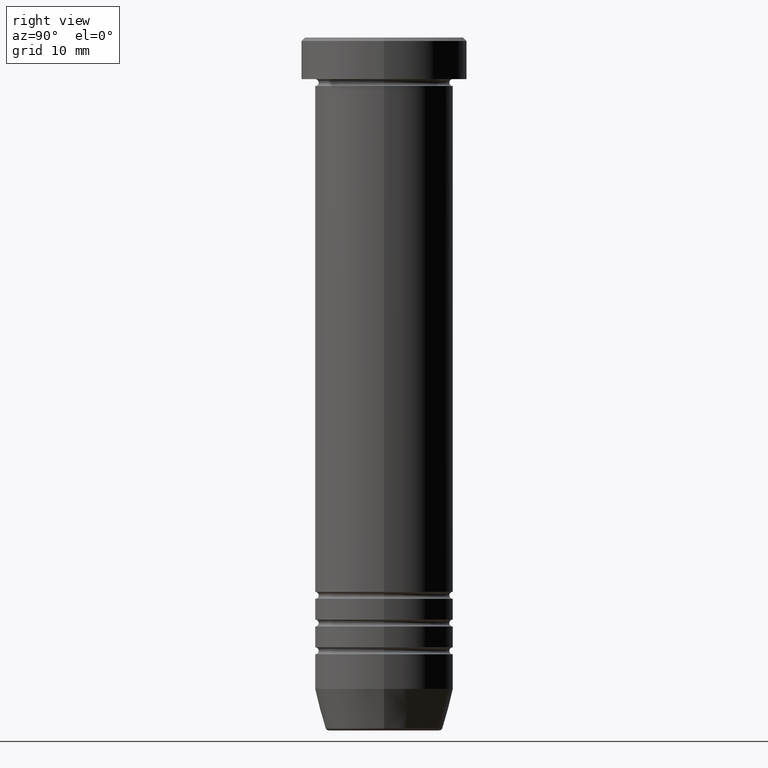
[diagram: clean part render]
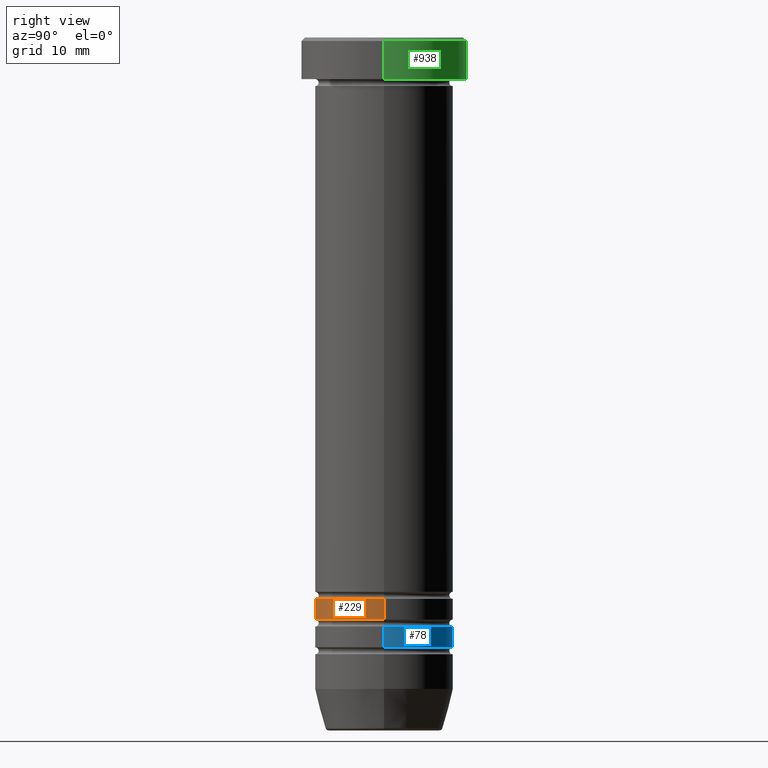
[diagram: same view with three faces highlighted in distinct colors, each labeled with its STEP entity id]
A machine part, right view with three faces highlighted in distinct colors.
Their STEP definitions:

[orange] entity #229 — the highlighted cylindrical surface (partial cylindrical patch) has radius 10 mm, axis along (-0, -0, 1).
#4 = EDGE_CURVE ( 'NONE', #180, #565, #630, .T. ) ;
#12 = VERTEX_POINT ( 'NONE', #38 ) ;
#38 = CARTESIAN_POINT ( 'NONE',  ( -10.00000000000000000, 1.224646799147353256E-15, -81.00000000000000000 ) ) ;
#48 = AXIS2_PLACEMENT_3D ( 'NONE', #1020, #848, #297 ) ;
#87 = ORIENTED_EDGE ( 'NONE', *, *, #288, .T. ) ;
#105 = DIRECTION ( 'NONE',  ( 1.000000000000000000, 0.000000000000000000, 0.000000000000000000 ) ) ;
#139 = DIRECTION ( 'NONE',  ( -0.000000000000000000, -0.000000000000000000, 1.000000000000000000 ) ) ;
#180 = VERTEX_POINT ( 'NONE', #584 ) ;
#199 = LINE ( 'NONE', #624, #552 ) ;
#215 = CARTESIAN_POINT ( 'NONE',  ( -9.999999999999998224, 1.224646799147353059E-15, -83.99999999999998579 ) ) ;
#216 = EDGE_LOOP ( 'NONE', ( #267, #87, #398, #902 ) ) ;
#229 = ADVANCED_FACE ( 'NONE', ( #828 ), #935, .T. ) ;
#243 = AXIS2_PLACEMENT_3D ( 'NONE', #293, #528, #1017 ) ;
#250 = EDGE_CURVE ( 'NONE', #693, #12, #199, .T. ) ;
#252 = EDGE_CURVE ( 'NONE', #12, #565, #959, .T. ) ;
#267 = ORIENTED_EDGE ( 'NONE', *, *, #250, .F. ) ;
#288 = EDGE_CURVE ( 'NONE', #693, #180, #669, .T. ) ;
#293 = CARTESIAN_POINT ( 'NONE',  ( 0.000000000000000000, 0.000000000000000000, -81.00000000000000000 ) ) ;
#297 = DIRECTION ( 'NONE',  ( 1.000000000000000000, 0.000000000000000000, 0.000000000000000000 ) ) ;
#398 = ORIENTED_EDGE ( 'NONE', *, *, #4, .T. ) ;
#445 = DIRECTION ( 'NONE',  ( -0.000000000000000000, -0.000000000000000000, 1.000000000000000000 ) ) ;
#486 = AXIS2_PLACEMENT_3D ( 'NONE', #1027, #629, #105 ) ;
#528 = DIRECTION ( 'NONE',  ( -0.000000000000000000, -0.000000000000000000, 1.000000000000000000 ) ) ;
#552 = VECTOR ( 'NONE', #445, 1000.000000000000000 ) ;
#565 = VERTEX_POINT ( 'NONE', #754 ) ;
#584 = CARTESIAN_POINT ( 'NONE',  ( 9.999999999999998224, 0.000000000000000000, -83.99999999999998579 ) ) ;
#624 = CARTESIAN_POINT ( 'NONE',  ( -9.999999999999998224, 1.224646799147353059E-15, 0.000000000000000000 ) ) ;
#629 = DIRECTION ( 'NONE',  ( -0.000000000000000000, -0.000000000000000000, 1.000000000000000000 ) ) ;
#630 = LINE ( 'NONE', #944, #911 ) ;
#669 = CIRCLE ( 'NONE', #486, 9.999999999999998224 ) ;
#693 = VERTEX_POINT ( 'NONE', #215 ) ;
#754 = CARTESIAN_POINT ( 'NONE',  ( 10.00000000000000000, 0.000000000000000000, -81.00000000000000000 ) ) ;
#828 = FACE_OUTER_BOUND ( 'NONE', #216, .T. ) ;
#848 = DIRECTION ( 'NONE',  ( -0.000000000000000000, -0.000000000000000000, 1.000000000000000000 ) ) ;
#902 = ORIENTED_EDGE ( 'NONE', *, *, #252, .F. ) ;
#911 = VECTOR ( 'NONE', #139, 1000.000000000000000 ) ;
#935 = CYLINDRICAL_SURFACE ( 'NONE', #48, 9.999999999999998224 ) ;
#944 = CARTESIAN_POINT ( 'NONE',  ( 9.999999999999998224, 0.000000000000000000, 0.000000000000000000 ) ) ;
#959 = CIRCLE ( 'NONE', #243, 10.00000000000000000 ) ;
#1017 = DIRECTION ( 'NONE',  ( 1.000000000000000000, 0.000000000000000000, 0.000000000000000000 ) ) ;
#1020 = CARTESIAN_POINT ( 'NONE',  ( 0.000000000000000000, 0.000000000000000000, 0.000000000000000000 ) ) ;
#1027 = CARTESIAN_POINT ( 'NONE',  ( 0.000000000000000000, 0.000000000000000000, -83.99999999999998579 ) ) ;

[blue] entity #78 — the highlighted cylindrical surface (partial cylindrical patch) has radius 10 mm, axis along (-0, -0, 1).
#39 = LINE ( 'NONE', #469, #281 ) ;
#57 = DIRECTION ( 'NONE',  ( 1.000000000000000000, 0.000000000000000000, 0.000000000000000000 ) ) ;
#60 = CARTESIAN_POINT ( 'NONE',  ( 10.00000000000000000, 0.000000000000000000, -84.99999999999998579 ) ) ;
#78 = ADVANCED_FACE ( 'NONE', ( #217 ), #715, .T. ) ;
#106 = ORIENTED_EDGE ( 'NONE', *, *, #131, .T. ) ;
#131 = EDGE_CURVE ( 'NONE', #986, #626, #305, .T. ) ;
#135 = CARTESIAN_POINT ( 'NONE',  ( -9.999999999999992895, 1.224646799147352665E-15, -88.00000000000000000 ) ) ;
#217 = FACE_OUTER_BOUND ( 'NONE', #714, .T. ) ;
#218 = DIRECTION ( 'NONE',  ( 1.000000000000000000, 0.000000000000000000, 0.000000000000000000 ) ) ;
#261 = CIRCLE ( 'NONE', #277, 9.999999999999992895 ) ;
#277 = AXIS2_PLACEMENT_3D ( 'NONE', #477, #470, #648 ) ;
#281 = VECTOR ( 'NONE', #310, 1000.000000000000000 ) ;
#305 = LINE ( 'NONE', #955, #355 ) ;
#309 = ORIENTED_EDGE ( 'NONE', *, *, #435, .T. ) ;
#310 = DIRECTION ( 'NONE',  ( -0.000000000000000000, -0.000000000000000000, 1.000000000000000000 ) ) ;
#355 = VECTOR ( 'NONE', #394, 1000.000000000000000 ) ;
#394 = DIRECTION ( 'NONE',  ( -0.000000000000000000, -0.000000000000000000, 1.000000000000000000 ) ) ;
#433 = CIRCLE ( 'NONE', #820, 10.00000000000000000 ) ;
#435 = EDGE_CURVE ( 'NONE', #749, #986, #261, .T. ) ;
#437 = VERTEX_POINT ( 'NONE', #60 ) ;
#469 = CARTESIAN_POINT ( 'NONE',  ( 9.999999999999996447, 0.000000000000000000, 0.000000000000000000 ) ) ;
#470 = DIRECTION ( 'NONE',  ( -0.000000000000000000, -0.000000000000000000, 1.000000000000000000 ) ) ;
#477 = CARTESIAN_POINT ( 'NONE',  ( 0.000000000000000000, 0.000000000000000000, -88.00000000000000000 ) ) ;
#535 = AXIS2_PLACEMENT_3D ( 'NONE', #557, #544, #57 ) ;
#544 = DIRECTION ( 'NONE',  ( -0.000000000000000000, -0.000000000000000000, 1.000000000000000000 ) ) ;
#557 = CARTESIAN_POINT ( 'NONE',  ( 0.000000000000000000, 0.000000000000000000, 0.000000000000000000 ) ) ;
#564 = CARTESIAN_POINT ( 'NONE',  ( 0.000000000000000000, 0.000000000000000000, -84.99999999999998579 ) ) ;
#612 = CARTESIAN_POINT ( 'NONE',  ( 9.999999999999992895, 0.000000000000000000, -88.00000000000000000 ) ) ;
#626 = VERTEX_POINT ( 'NONE', #763 ) ;
#648 = DIRECTION ( 'NONE',  ( 1.000000000000000000, 0.000000000000000000, 0.000000000000000000 ) ) ;
#714 = EDGE_LOOP ( 'NONE', ( #309, #106, #921, #799 ) ) ;
#715 = CYLINDRICAL_SURFACE ( 'NONE', #535, 9.999999999999996447 ) ;
#749 = VERTEX_POINT ( 'NONE', #612 ) ;
#763 = CARTESIAN_POINT ( 'NONE',  ( -10.00000000000000178, 1.224646799147353454E-15, -84.99999999999998579 ) ) ;
#799 = ORIENTED_EDGE ( 'NONE', *, *, #923, .F. ) ;
#820 = AXIS2_PLACEMENT_3D ( 'NONE', #564, #953, #218 ) ;
#921 = ORIENTED_EDGE ( 'NONE', *, *, #966, .F. ) ;
#923 = EDGE_CURVE ( 'NONE', #749, #437, #39, .T. ) ;
#953 = DIRECTION ( 'NONE',  ( -0.000000000000000000, -0.000000000000000000, 1.000000000000000000 ) ) ;
#955 = CARTESIAN_POINT ( 'NONE',  ( -9.999999999999996447, 1.224646799147352862E-15, 0.000000000000000000 ) ) ;
#966 = EDGE_CURVE ( 'NONE', #437, #626, #433, .T. ) ;
#986 = VERTEX_POINT ( 'NONE', #135 ) ;

[green] entity #938 — the highlighted cylindrical surface (partial cylindrical patch) has radius 12 mm, axis along (-0, -0, 1).
#33 = CIRCLE ( 'NONE', #337, 12.00000000000000000 ) ;
#72 = ORIENTED_EDGE ( 'NONE', *, *, #585, .T. ) ;
#86 = EDGE_CURVE ( 'NONE', #674, #839, #33, .T. ) ;
#116 = VECTOR ( 'NONE', #802, 1000.000000000000000 ) ;
#146 = DIRECTION ( 'NONE',  ( 1.000000000000000000, 0.000000000000000000, 0.000000000000000000 ) ) ;
#221 = EDGE_LOOP ( 'NONE', ( #851, #72, #641, #852 ) ) ;
#227 = CIRCLE ( 'NONE', #724, 12.00000000000000000 ) ;
#279 = VECTOR ( 'NONE', #926, 1000.000000000000000 ) ;
#290 = VERTEX_POINT ( 'NONE', #941 ) ;
#306 = CYLINDRICAL_SURFACE ( 'NONE', #473, 12.00000000000000000 ) ;
#320 = EDGE_CURVE ( 'NONE', #972, #290, #227, .T. ) ;
#337 = AXIS2_PLACEMENT_3D ( 'NONE', #883, #870, #146 ) ;
#352 = DIRECTION ( 'NONE',  ( 0.000000000000000000, 0.000000000000000000, -1.000000000000000000 ) ) ;
#370 = DIRECTION ( 'NONE',  ( 1.000000000000000000, 0.000000000000000000, 0.000000000000000000 ) ) ;
#443 = EDGE_CURVE ( 'NONE', #674, #290, #981, .T. ) ;
#465 = CARTESIAN_POINT ( 'NONE',  ( 0.000000000000000000, 0.000000000000000000, 0.000000000000000000 ) ) ;
#473 = AXIS2_PLACEMENT_3D ( 'NONE', #465, #794, #539 ) ;
#482 = CARTESIAN_POINT ( 'NONE',  ( 12.00000000000000000, 0.000000000000000000, 0.000000000000000000 ) ) ;
#513 = CARTESIAN_POINT ( 'NONE',  ( -12.00000000000000000, 1.469576158976823947E-15, 0.000000000000000000 ) ) ;
#533 = CARTESIAN_POINT ( 'NONE',  ( 0.000000000000000000, 0.000000000000000000, -0.5000000000000091038 ) ) ;
#539 = DIRECTION ( 'NONE',  ( 1.000000000000000000, 0.000000000000000000, 0.000000000000000000 ) ) ;
#585 = EDGE_CURVE ( 'NONE', #839, #972, #845, .T. ) ;
#641 = ORIENTED_EDGE ( 'NONE', *, *, #320, .T. ) ;
#674 = VERTEX_POINT ( 'NONE', #706 ) ;
#706 = CARTESIAN_POINT ( 'NONE',  ( 12.00000000000000000, 0.000000000000000000, -6.000000000000000000 ) ) ;
#719 = CARTESIAN_POINT ( 'NONE',  ( -12.00000000000000000, 1.469576158976823947E-15, -0.5000000000000091038 ) ) ;
#724 = AXIS2_PLACEMENT_3D ( 'NONE', #533, #352, #370 ) ;
#794 = DIRECTION ( 'NONE',  ( -0.000000000000000000, -0.000000000000000000, 1.000000000000000000 ) ) ;
#802 = DIRECTION ( 'NONE',  ( -0.000000000000000000, -0.000000000000000000, 1.000000000000000000 ) ) ;
#839 = VERTEX_POINT ( 'NONE', #847 ) ;
#845 = LINE ( 'NONE', #513, #279 ) ;
#847 = CARTESIAN_POINT ( 'NONE',  ( -12.00000000000000000, 1.469576158976823947E-15, -6.000000000000000000 ) ) ;
#851 = ORIENTED_EDGE ( 'NONE', *, *, #86, .T. ) ;
#852 = ORIENTED_EDGE ( 'NONE', *, *, #443, .F. ) ;
#870 = DIRECTION ( 'NONE',  ( -0.000000000000000000, -0.000000000000000000, 1.000000000000000000 ) ) ;
#883 = CARTESIAN_POINT ( 'NONE',  ( 0.000000000000000000, 0.000000000000000000, -6.000000000000000000 ) ) ;
#926 = DIRECTION ( 'NONE',  ( -0.000000000000000000, -0.000000000000000000, 1.000000000000000000 ) ) ;
#938 = ADVANCED_FACE ( 'NONE', ( #1019 ), #306, .T. ) ;
#941 = CARTESIAN_POINT ( 'NONE',  ( 12.00000000000000000, 0.000000000000000000, -0.5000000000000091038 ) ) ;
#972 = VERTEX_POINT ( 'NONE', #719 ) ;
#981 = LINE ( 'NONE', #482, #116 ) ;
#1019 = FACE_OUTER_BOUND ( 'NONE', #221, .T. ) ;